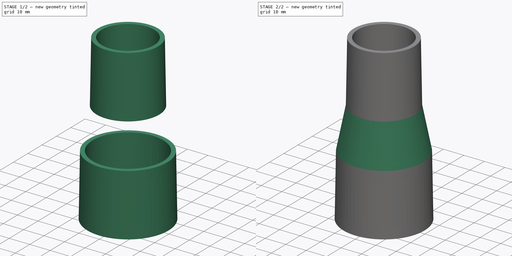
[diagram: build sequence overview — one tinted view per stage of 2, left to right]
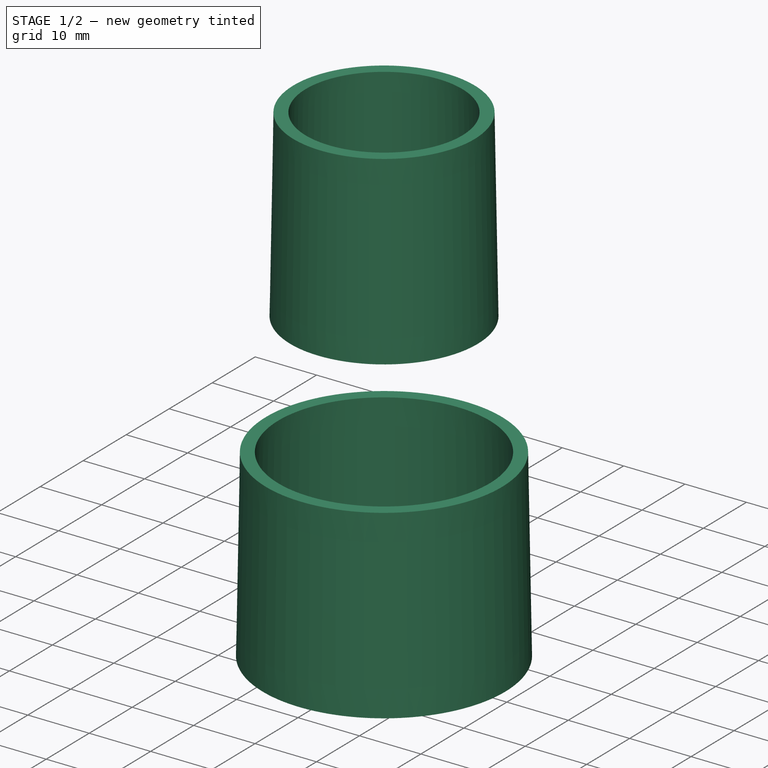
[diagram: stage 1 of 2 — iso view after this stage's code; geometry added in this stage tinted green]
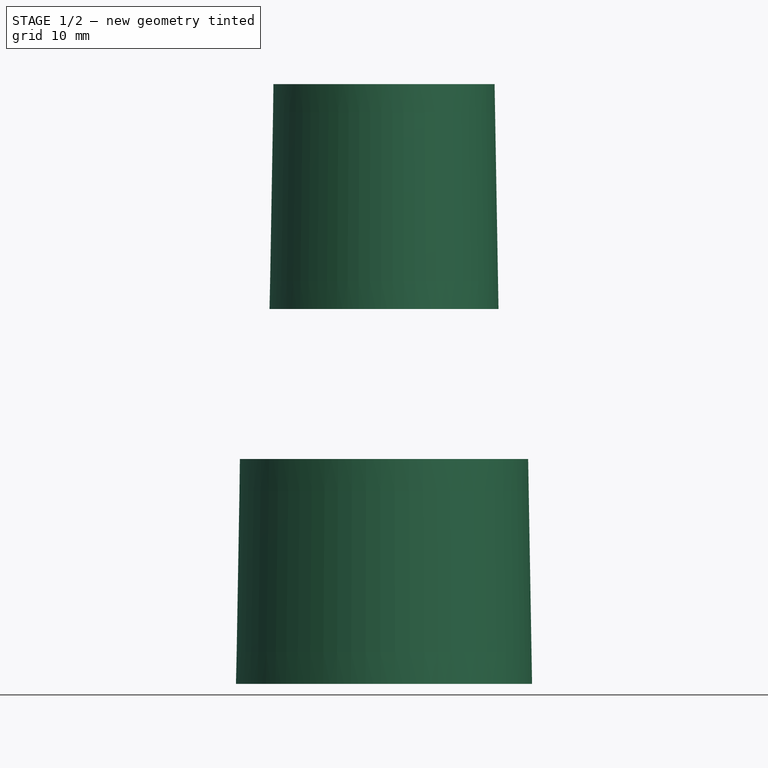
[diagram: stage 1 of 2 — front view after this stage's code; geometry added in this stage tinted green]
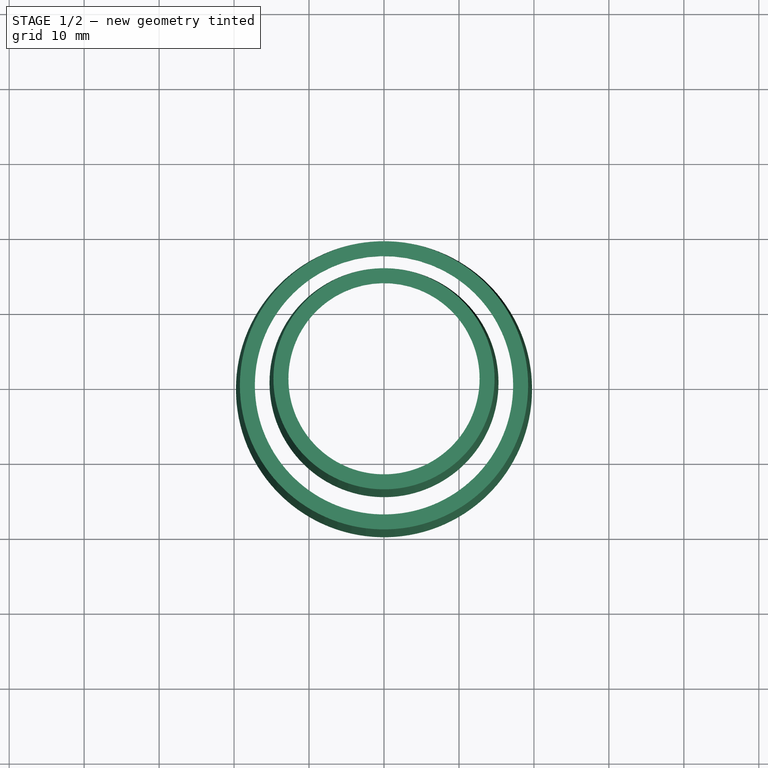
[diagram: stage 1 of 2 — top view after this stage's code; geometry added in this stage tinted green]
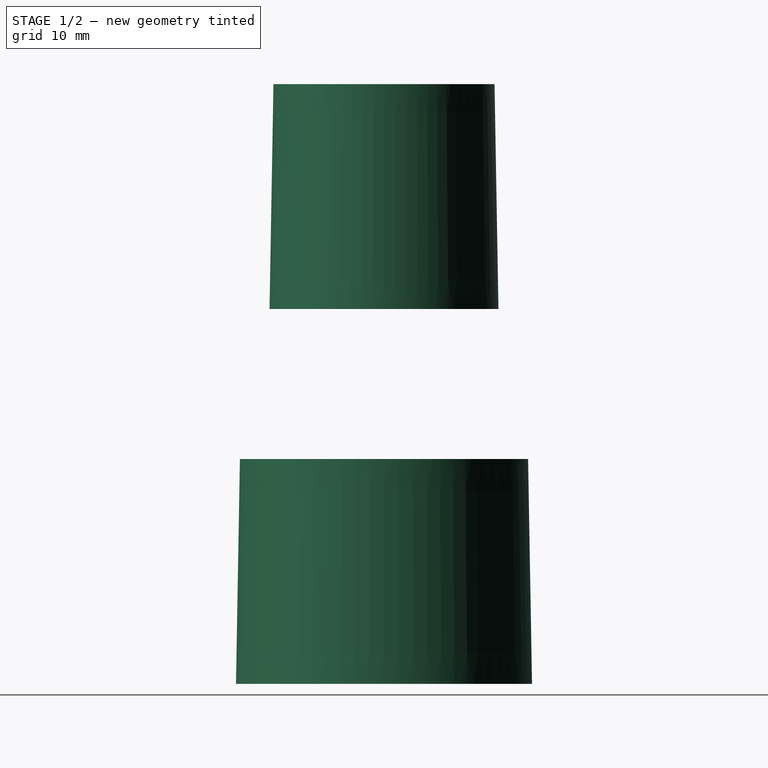
[diagram: stage 1 of 2 — right view after this stage's code; geometry added in this stage tinted green]
FCSTD DOCUMENT  (FreeCAD 2021.1015R24301 +3962 (Git))
Label: saw
License: All rights reserved
LicenseURL: http://en.wikipedia.org/wiki/All_rights_reserved
objects: PartDesign::SubShapeBinder×4, Sketcher::SketchObject×2, PartDesign::Pad×2, Spreadsheet::Sheet×1, PartDesign::AdditiveLoft×1, PartDesign::SubtractiveLoft×1, PartDesign::Body×1
note: 19 computed .brp shape members not serialized (recipe doc carries the construction recipe); baked Part::Feature solids carry a one-line shape summary decoded from their .brp

FEATURE [Spreadsheet::Sheet] Spreadsheet  label="dim"
  PythonMode = false
  cells = A1='wall; B1(wall)==2mm; A2='outer_wall; B2(outer_wall)==29.5mm; A3='outer_length; B3(outer_length)==30mm; A4='inner_wall; B4(inner_wall)==35.5mm; A5='inner_length; B5(inner_length)==30mm; A6='taper; B6(taper)==1deg; A7='interface_length; B7(interface_length)==20mm
FEATURE [Sketcher::SketchObject] Sketch
  FullyConstrained = true
  MapMode = 5
  Support = -> [XY_Plane]
  expr: Constraints[1] = <<dim>>.inner_wall
  expr: Constraints[3] = <<dim>>.inner_wall + 2 * <<dim>>.wall
  sketch-geometry (2):
    g0: Circle CenterX=0 CenterY=0 CenterZ=0 NormalX=0 NormalY=0 NormalZ=1 AngleXU=0 Radius=17.75
    g1: Circle CenterX=0 CenterY=0 CenterZ=0 NormalX=0 NormalY=0 NormalZ=1 AngleXU=0 Radius=19.75
  constraints (4):
    c: Coincident(g0,g-1)
    c: Diameter(g0) = 35.5
    c: Coincident(g1,g0)
    c: Diameter(g1) = 39.5
FEATURE [PartDesign::Pad] Pad
  ClaimChildren = false
  Direction = (1,1,1)
  Fit = 0
  FitJoin = 0
  InnerFit = 0
  InnerFitJoin = 0
  InnerTaperAngle = -1
  InnerTaperAngleRev = 0
  Length = 30
  Length2 = 100
  Linearize = true
  NewSolid = false
  Profile = -> Sketch
  Refine = true
  Suppress = false
  TaperAngle = -1
  Type = 0
  _ProfileBasedVersion = 1
  expr: InnerTaperAngle = -<<dim>>.taper
  expr: Length = <<dim>>.inner_length
  expr: TaperAngle = -<<dim>>.taper
FEATURE [Sketcher::SketchObject] Sketch001
  AttachmentOffset = pos=(0,0,80) rot=(0,0,1;0rad)
  FullyConstrained = true
  MapMode = 5
  Placement = pos=(0,0,80) rot=(0,0,1;0rad)
  Support = -> [XY_Plane]
  expr: AttachmentOffset.Base.z = <<dim>>.inner_length + <<dim>>.outer_length + <<dim>>.interface_length
  expr: Constraints[1] = <<dim>>.outer_wall
  expr: Constraints[3] = <<dim>>.outer_wall - 2 * <<dim>>.wall
  sketch-geometry (2):
    g0: Circle CenterX=0 CenterY=0 CenterZ=0 NormalX=0 NormalY=0 NormalZ=1 AngleXU=0 Radius=14.75
    g1: Circle CenterX=0 CenterY=0 CenterZ=0 NormalX=0 NormalY=0 NormalZ=1 AngleXU=0 Radius=12.75
  constraints (4):
    c: Coincident(g0,g-1)
    c: Diameter(g0) = 29.5
    c: Coincident(g1,g0)
    c: Diameter(g1) = 25.5
FEATURE [PartDesign::Pad] Pad001
  BaseFeature = -> Pad
  ClaimChildren = false
  Direction = (1,1,1)
  Fit = 0
  FitJoin = 0
  InnerFit = 0
  InnerFitJoin = 0
  InnerTaperAngle = 1
  InnerTaperAngleRev = 0
  Length = 30
  Length2 = 100
  Linearize = true
  NewSolid = false
  Profile = -> Sketch001
  Refine = true
  Reversed = true
  Suppress = false
  TaperAngle = 1
  Type = 0
  _ProfileBasedVersion = 1
  expr: InnerTaperAngle = <<dim>>.taper
  expr: Length = <<dim>>.inner_length
  expr: TaperAngle = <<dim>>.taper
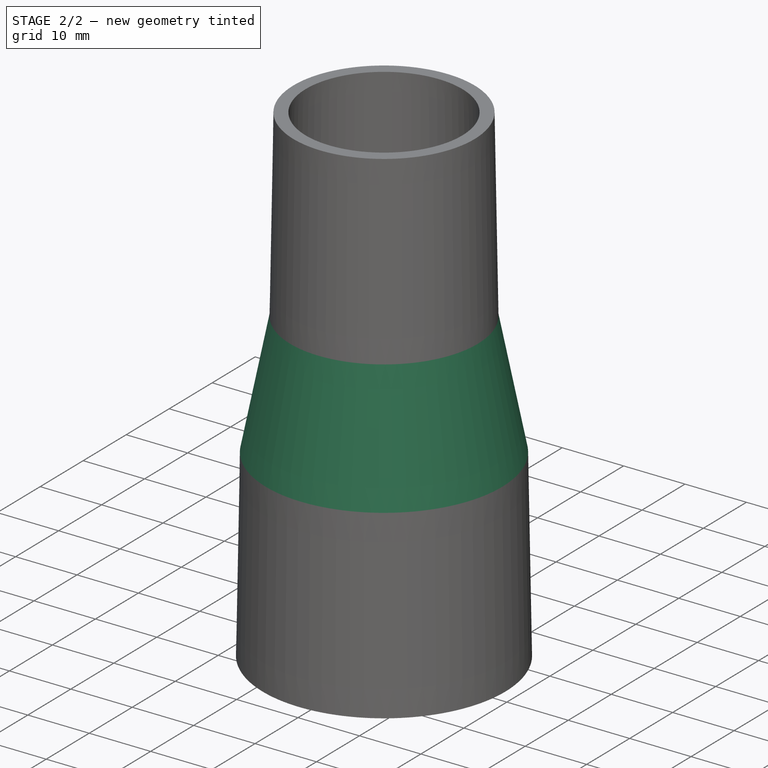
[diagram: stage 2 of 2 — iso view after this stage's code; geometry added in this stage tinted green]
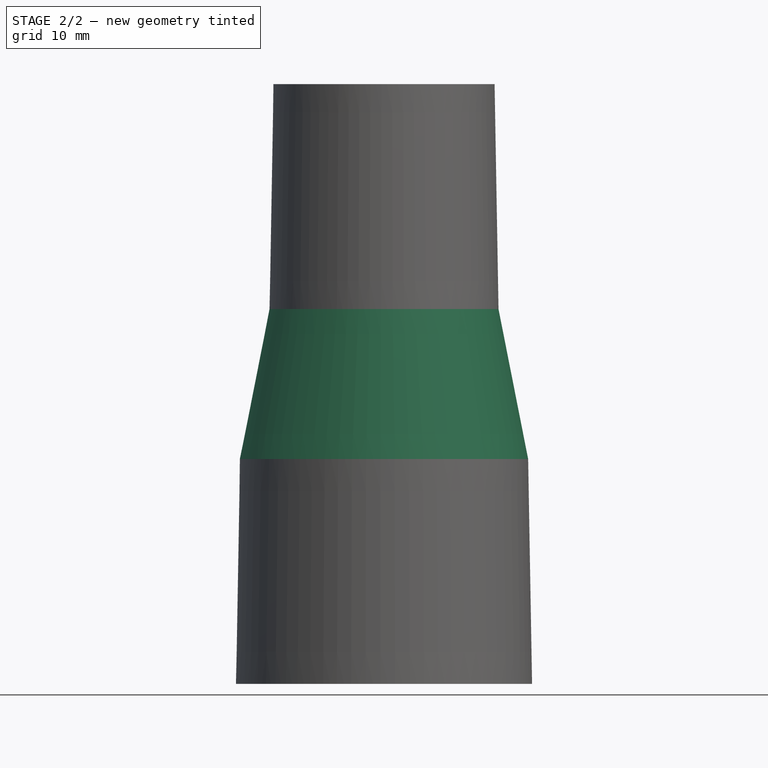
[diagram: stage 2 of 2 — front view after this stage's code; geometry added in this stage tinted green]
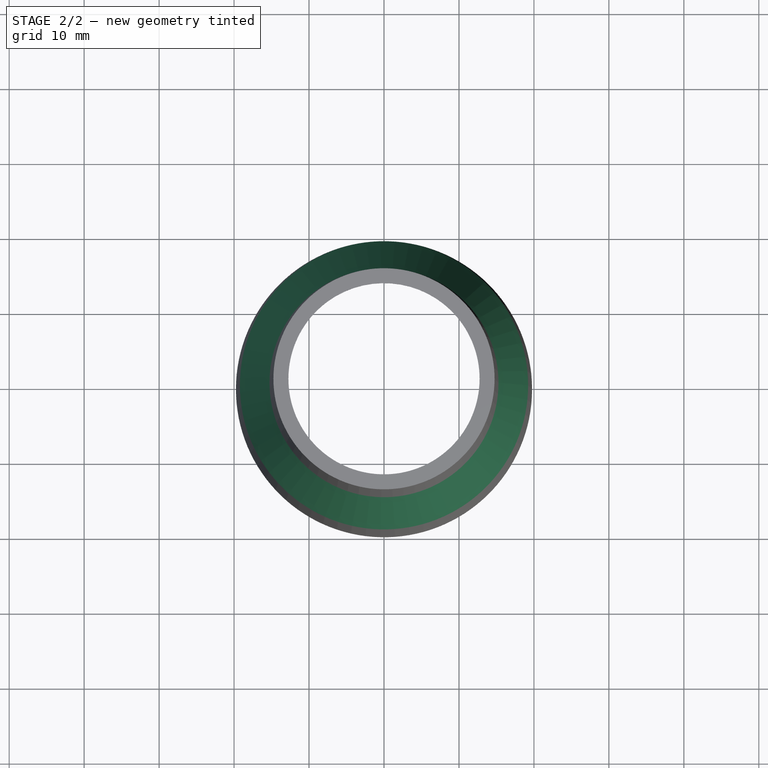
[diagram: stage 2 of 2 — top view after this stage's code; geometry added in this stage tinted green]
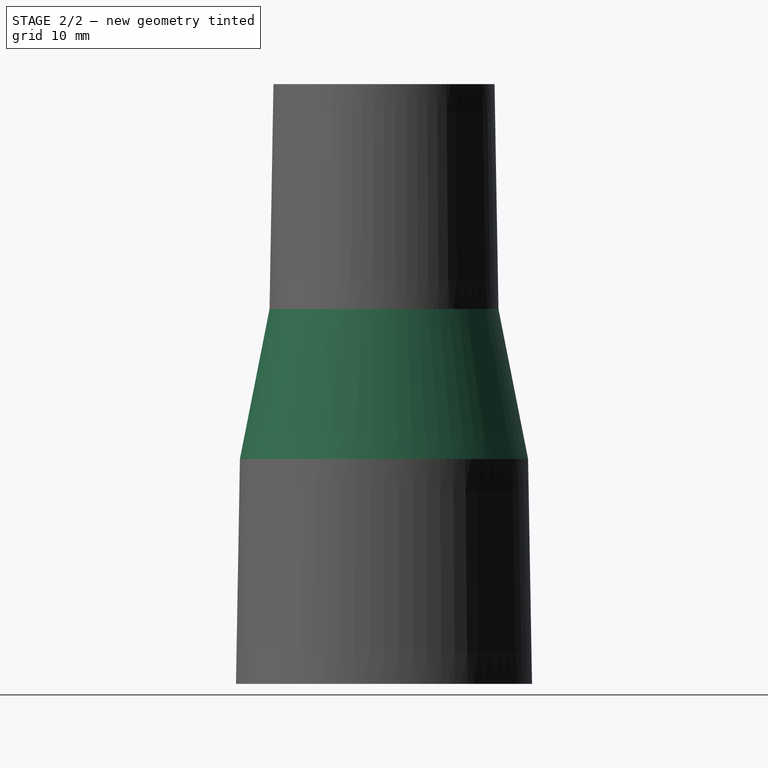
[diagram: stage 2 of 2 — right view after this stage's code; geometry added in this stage tinted green]
FEATURE [PartDesign::SubShapeBinder] Binder  label="Binder(Pad001)"
  BindCopyOnChange = 0
  BindMode = 0
  ClaimChildren = false
  Context = -> Body [Binder.]
  FillStyle = 0
  Fuse = false
  MakeFace = true
  PartialLoad = false
  Relative = true
  Support = -> [Pad001[Edge3]]
  _Version = 7
FEATURE [PartDesign::SubShapeBinder] Binder001  label="Binder001(Pad001)"
  BindCopyOnChange = 0
  BindMode = 0
  ClaimChildren = false
  Context = -> Body [Binder001.]
  FillStyle = 0
  Fuse = false
  MakeFace = true
  PartialLoad = false
  Relative = true
  Support = -> [Pad001[Edge9]]
  _Version = 7
FEATURE [PartDesign::AdditiveLoft] AdditiveLoft
  BaseFeature = -> Pad001
  ClaimChildren = false
  Closed = false
  Fit = 0
  FitJoin = 0
  InnerFit = 0
  InnerFitJoin = 0
  NewSolid = false
  Profile = -> Binder
  Refine = true
  Ruled = false
  Sections = -> [Binder001]
  Suppress = false
  _ProfileBasedVersion = 1
FEATURE [PartDesign::SubShapeBinder] Binder002  label="Binder002(AdditiveLoft)"
  BindCopyOnChange = 0
  BindMode = 0
  ClaimChildren = false
  Context = -> Body [Binder002.]
  FillStyle = 0
  Fuse = false
  MakeFace = true
  PartialLoad = false
  Relative = true
  Support = -> [AdditiveLoft[Edge8]]
  _Version = 7
FEATURE [PartDesign::SubShapeBinder] Binder003  label="Binder003(AdditiveLoft)"
  BindCopyOnChange = 0
  BindMode = 0
  ClaimChildren = false
  Context = -> Body [Binder003.]
  FillStyle = 0
  Fuse = false
  MakeFace = true
  PartialLoad = false
  Relative = true
  Support = -> [AdditiveLoft[Edge13]]
  _Version = 7
FEATURE [PartDesign::SubtractiveLoft] SubtractiveLoft
  BaseFeature = -> AdditiveLoft
  ClaimChildren = false
  Closed = false
  Fit = 0
  FitJoin = 0
  InnerFit = 0
  InnerFitJoin = 0
  NewSolid = false
  Profile = -> Binder002
  Refine = true
  Ruled = false
  Sections = -> [Binder003]
  Suppress = false
  _ProfileBasedVersion = 1
FEATURE [PartDesign::Body] Body
  AutoGroupSolids = false
  ExportMode = 0
  Group = -> [Sketch,Pad,Sketch001,Pad001,Binder,Binder001,AdditiveLoft,Binder002,Binder003,SubtractiveLoft]
  Origin = -> Origin
  Tip = -> SubtractiveLoft
  _ExportChildren = -> [Pad,Pad001,AdditiveLoft,SubtractiveLoft]
  _GroupVersion = 1
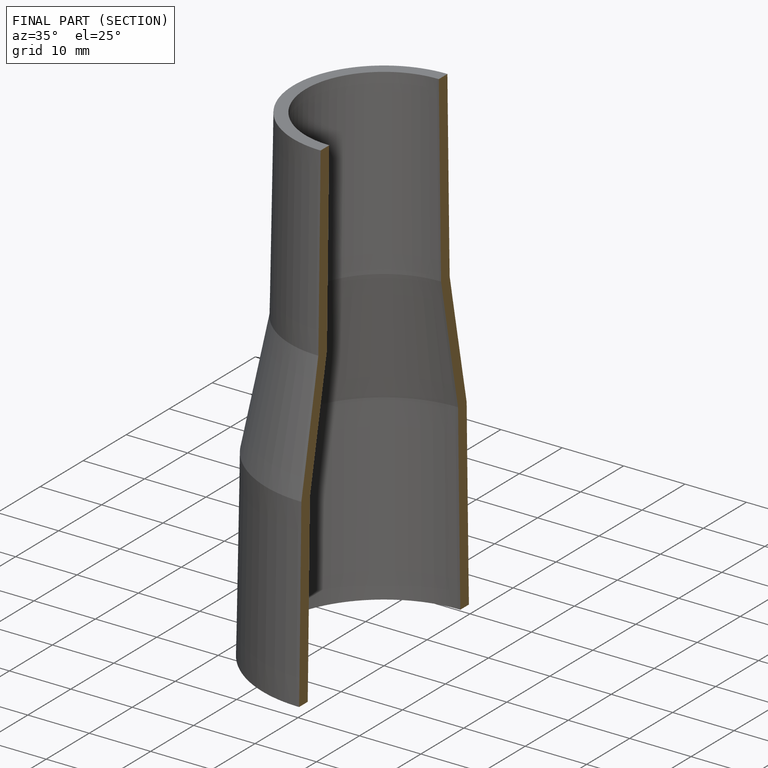
[diagram: finished part — half-section view (interior)]
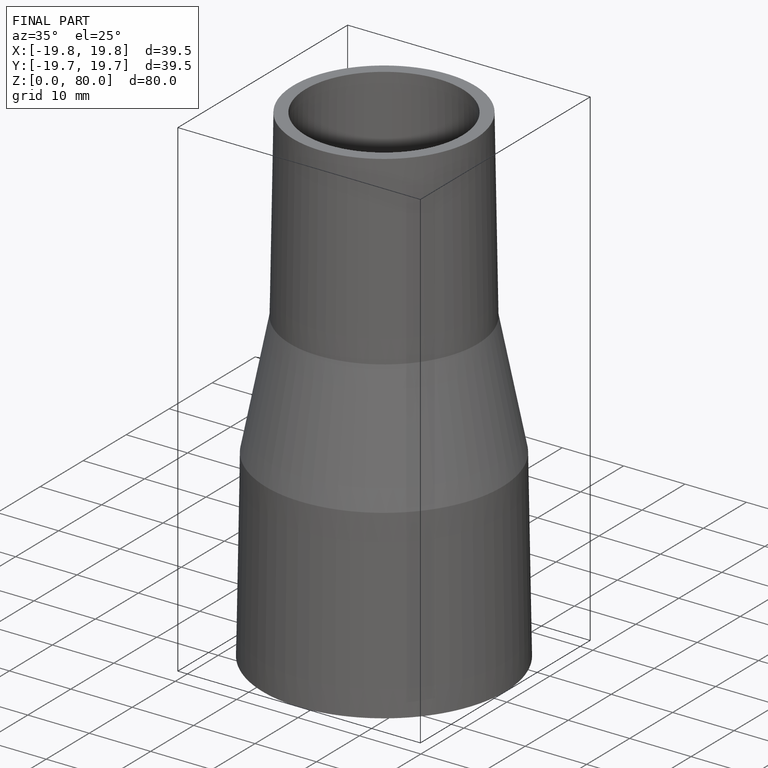
[diagram: finished part — iso view with bounding-box wireframe]
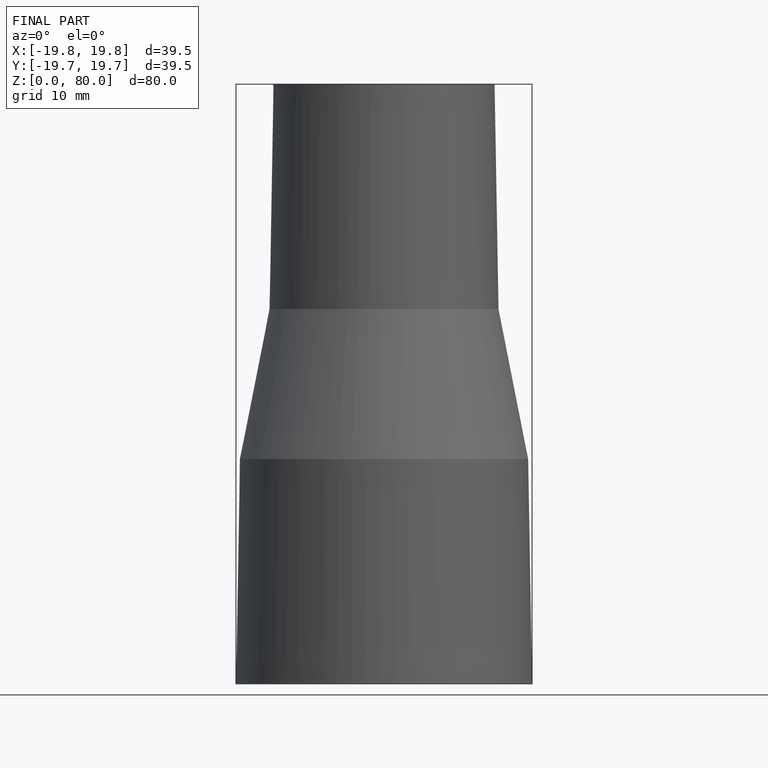
[diagram: finished part — front view with bounding-box wireframe]
